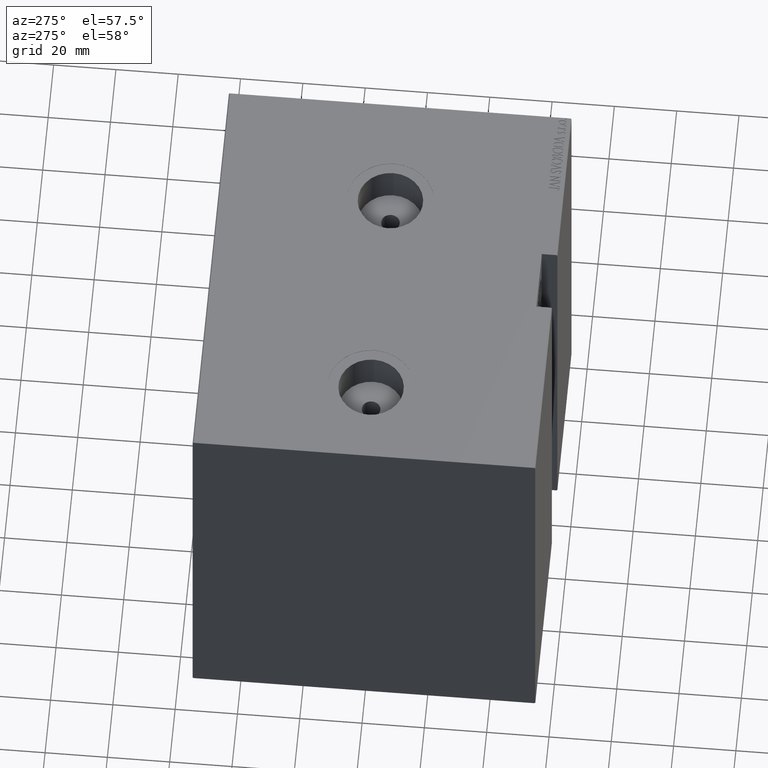
[diagram: clean part render]
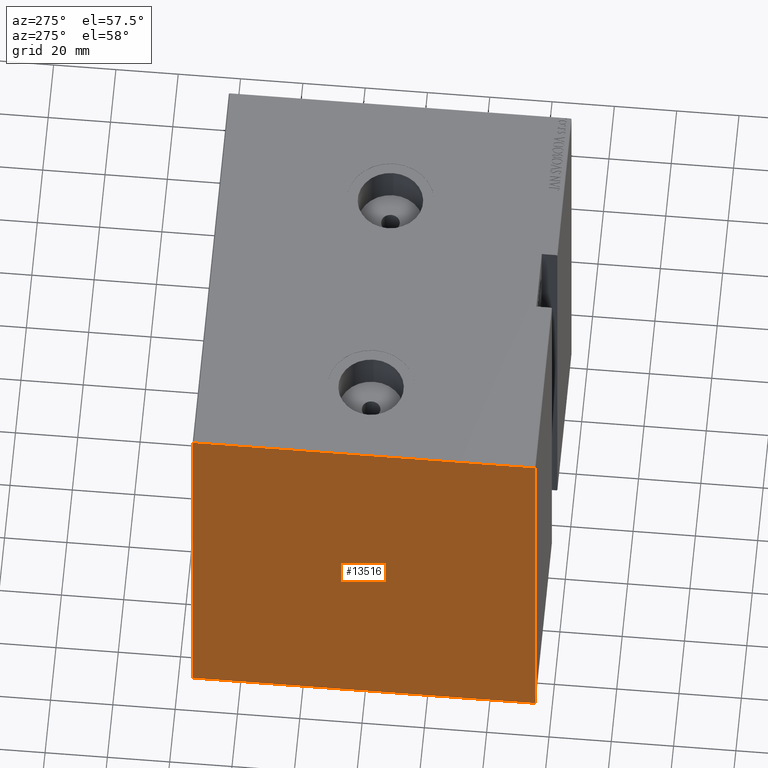
[diagram: same view with one face highlighted and labeled with its STEP entity id]
A machine part, auxiliary view. The second image highlights one B-rep face of the part: STEP entity #13516.
In plain terms, the highlighted planar face has unit normal (-1, 0, 0).
Its self-contained STEP definition (entity closure, byte-faithful):
#333 = VERTEX_POINT ( 'NONE', #15983 ) ;
#1296 = VECTOR ( 'NONE', #28172, 1000.000000000000000 ) ;
#1345 = EDGE_CURVE ( 'NONE', #43450, #18957, #26657, .T. ) ;
#3555 = DIRECTION ( 'NONE',  ( -0.000000000000000000, 0.7071067811865474617, -0.7071067811865474617 ) ) ;
#4772 = ORIENTED_EDGE ( 'NONE', *, *, #41770, .T. ) ;
#4889 = DIRECTION ( 'NONE',  ( 1.000000000000000000, 0.000000000000000000, 0.000000000000000000 ) ) ;
#5469 = VECTOR ( 'NONE', #32928, 1000.000000000000000 ) ;
#5750 = CARTESIAN_POINT ( 'NONE',  ( 133.0000000000000000, 54.99999999999999289, 70.00000000000000000 ) ) ;
#6856 = DIRECTION ( 'NONE',  ( 0.000000000000000000, 1.000000000000000000, 0.000000000000000000 ) ) ;
#7414 = EDGE_CURVE ( 'NONE', #333, #14671, #32595, .T. ) ;
#7682 = ORIENTED_EDGE ( 'NONE', *, *, #1345, .T. ) ;
#7779 = LINE ( 'NONE', #30504, #21058 ) ;
#7799 = CARTESIAN_POINT ( 'NONE',  ( 133.0000000000000000, 0.000000000000000000, 0.000000000000000000 ) ) ;
#8125 = CARTESIAN_POINT ( 'NONE',  ( 133.0000000000000000, 62.34999999999872955, 62.35000000000162146 ) ) ;
#8849 = VERTEX_POINT ( 'NONE', #41205 ) ;
#10780 = VERTEX_POINT ( 'NONE', #35839 ) ;
#11652 = ORIENTED_EDGE ( 'NONE', *, *, #7414, .T. ) ;
#11849 = DIRECTION ( 'NONE',  ( 0.000000000000000000, -0.7071067811865474617, -0.7071067811865474617 ) ) ;
#11903 = EDGE_CURVE ( 'NONE', #13138, #8849, #34265, .T. ) ;
#12347 = CARTESIAN_POINT ( 'NONE',  ( 133.0000000000000000, -54.69999999999999574, 69.99999999999998579 ) ) ;
#13138 = VERTEX_POINT ( 'NONE', #27674 ) ;
#13385 = DIRECTION ( 'NONE',  ( -0.000000000000000000, 0.7071067811865802133, 0.7071067811865149322 ) ) ;
#13516 = ADVANCED_FACE ( 'NONE', ( #17156 ), #21816, .T. ) ;
#13967 = DIRECTION ( 'NONE',  ( 0.000000000000000000, 0.000000000000000000, -1.000000000000000000 ) ) ;
#14671 = VERTEX_POINT ( 'NONE', #35431 ) ;
#14762 = DIRECTION ( 'NONE',  ( 0.000000000000000000, -1.982541115402065110E-16, 1.000000000000000000 ) ) ;
#15983 = CARTESIAN_POINT ( 'NONE',  ( 133.0000000000000000, 55.00000000000002132, -69.70000000000005969 ) ) ;
#16282 = LINE ( 'NONE', #33667, #18314 ) ;
#16439 = ORIENTED_EDGE ( 'NONE', *, *, #35274, .T. ) ;
#17156 = FACE_OUTER_BOUND ( 'NONE', #31562, .T. ) ;
#17532 = LINE ( 'NONE', #34038, #41621 ) ;
#18230 = EDGE_CURVE ( 'NONE', #18957, #39935, #18536, .T. ) ;
#18314 = VECTOR ( 'NONE', #13385, 999.9999999999998863 ) ;
#18536 = LINE ( 'NONE', #38595, #32279 ) ;
#18550 = CARTESIAN_POINT ( 'NONE',  ( 133.0000000000000000, 55.00000000000002132, -70.00000000000001421 ) ) ;
#18957 = VERTEX_POINT ( 'NONE', #12347 ) ;
#19426 = AXIS2_PLACEMENT_3D ( 'NONE', #7799, #4889, #31849 ) ;
#20256 = ORIENTED_EDGE ( 'NONE', *, *, #38929, .T. ) ;
#21058 = VECTOR ( 'NONE', #3555, 1000.000000000000114 ) ;
#21494 = CARTESIAN_POINT ( 'NONE',  ( 133.0000000000000000, -54.99999999999999289, 69.70000000000000284 ) ) ;
#21816 = PLANE ( 'NONE',  #19426 ) ;
#22319 = EDGE_CURVE ( 'NONE', #39935, #10780, #17532, .T. ) ;
#24849 = CARTESIAN_POINT ( 'NONE',  ( 133.0000000000000000, 54.69999999999999574, 70.00000000000000000 ) ) ;
#26657 = LINE ( 'NONE', #5750, #5469 ) ;
#27587 = ORIENTED_EDGE ( 'NONE', *, *, #18230, .T. ) ;
#27674 = CARTESIAN_POINT ( 'NONE',  ( 133.0000000000000000, -54.69999999999999574, -70.00000000000001421 ) ) ;
#28172 = DIRECTION ( 'NONE',  ( -0.000000000000000000, -0.7071067811865638930, 0.7071067811865311414 ) ) ;
#30504 = CARTESIAN_POINT ( 'NONE',  ( 133.0000000000000000, -62.35000000000001563, -62.35000000000001563 ) ) ;
#31453 = VECTOR ( 'NONE', #6856, 1000.000000000000000 ) ;
#31522 = LINE ( 'NONE', #8125, #1296 ) ;
#31562 = EDGE_LOOP ( 'NONE', ( #31943, #20256, #11652, #4772, #7682, #27587, #42404, #16439 ) ) ;
#31849 = DIRECTION ( 'NONE',  ( 0.000000000000000000, 0.000000000000000000, -1.000000000000000000 ) ) ;
#31943 = ORIENTED_EDGE ( 'NONE', *, *, #11903, .T. ) ;
#32279 = VECTOR ( 'NONE', #11849, 1000.000000000000114 ) ;
#32595 = LINE ( 'NONE', #18550, #38947 ) ;
#32928 = DIRECTION ( 'NONE',  ( 0.000000000000000000, -1.000000000000000000, -1.261617073437677999E-16 ) ) ;
#33667 = CARTESIAN_POINT ( 'NONE',  ( 133.0000000000000000, 62.34999999999749321, -62.35000000000325571 ) ) ;
#34038 = CARTESIAN_POINT ( 'NONE',  ( 133.0000000000000000, -54.99999999999999289, 69.99999999999998579 ) ) ;
#34265 = LINE ( 'NONE', #37384, #31453 ) ;
#35274 = EDGE_CURVE ( 'NONE', #10780, #13138, #7779, .T. ) ;
#35431 = CARTESIAN_POINT ( 'NONE',  ( 133.0000000000000000, 54.99999999999999289, 69.70000000000003126 ) ) ;
#35839 = CARTESIAN_POINT ( 'NONE',  ( 133.0000000000000000, -54.99999999999999289, -69.70000000000003126 ) ) ;
#37384 = CARTESIAN_POINT ( 'NONE',  ( 133.0000000000000000, -54.99999999999999289, -70.00000000000001421 ) ) ;
#38595 = CARTESIAN_POINT ( 'NONE',  ( 133.0000000000000000, -62.34999999999999432, 62.34999999999999432 ) ) ;
#38929 = EDGE_CURVE ( 'NONE', #8849, #333, #16282, .T. ) ;
#38947 = VECTOR ( 'NONE', #14762, 1000.000000000000000 ) ;
#39935 = VERTEX_POINT ( 'NONE', #21494 ) ;
#41205 = CARTESIAN_POINT ( 'NONE',  ( 133.0000000000000000, 54.70000000000002416, -70.00000000000001421 ) ) ;
#41621 = VECTOR ( 'NONE', #13967, 1000.000000000000000 ) ;
#41770 = EDGE_CURVE ( 'NONE', #14671, #43450, #31522, .T. ) ;
#42404 = ORIENTED_EDGE ( 'NONE', *, *, #22319, .T. ) ;
#43450 = VERTEX_POINT ( 'NONE', #24849 ) ;